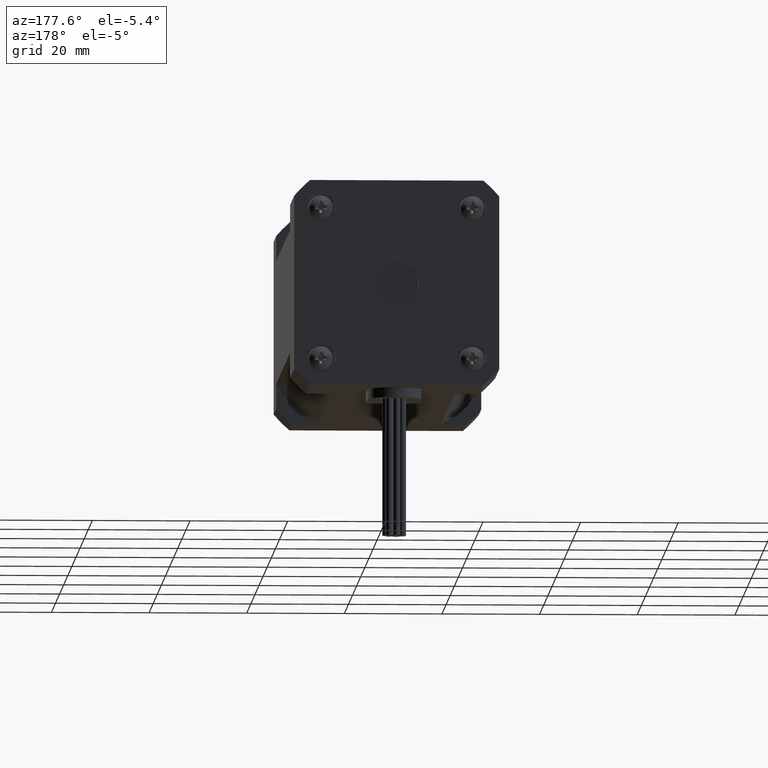
[diagram: clean part render]
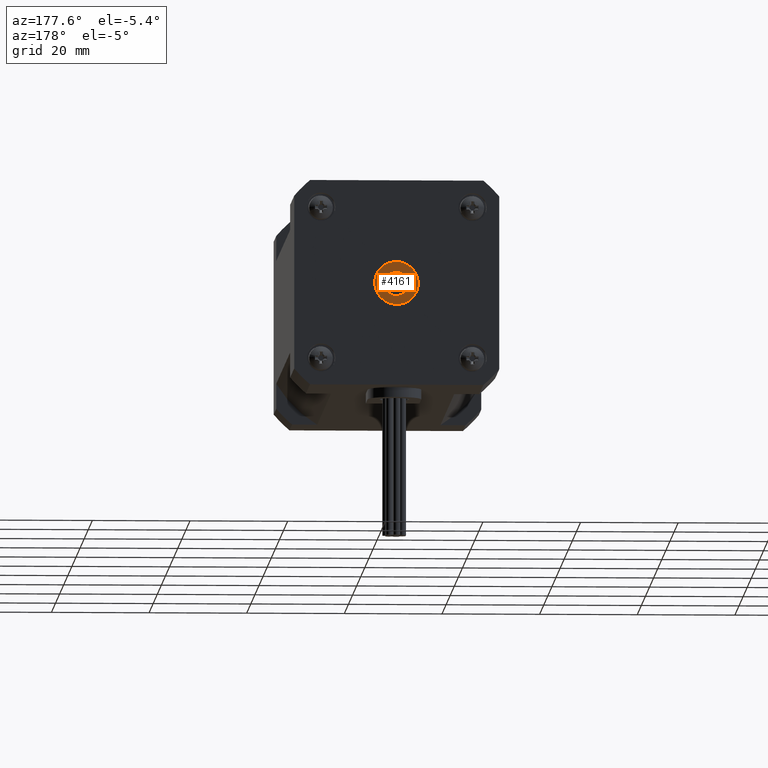
[diagram: same view with one face highlighted and labeled with its STEP entity id]
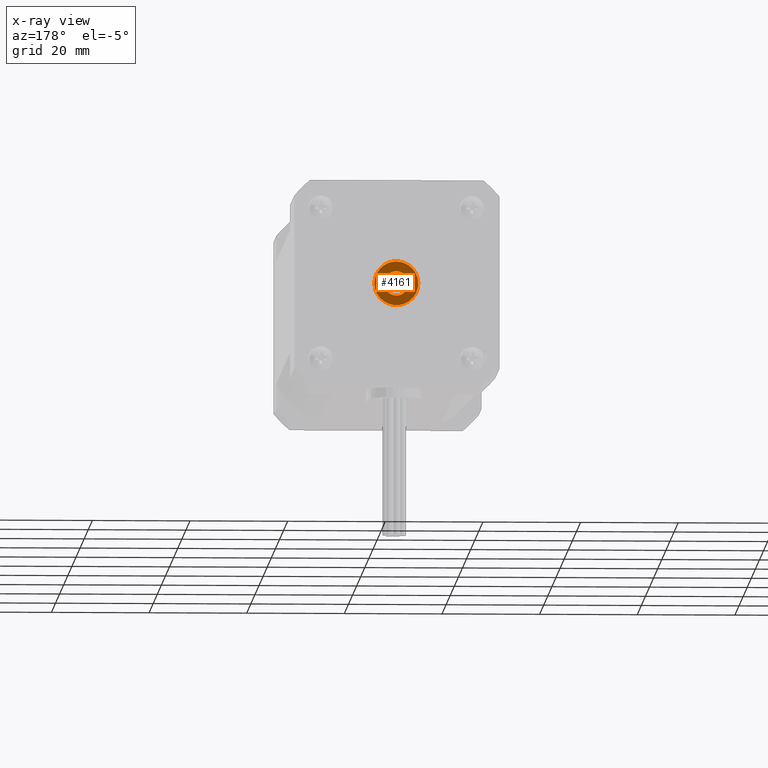
[diagram: x-ray of the same camera — body ghosted, the highlighted face saturated]
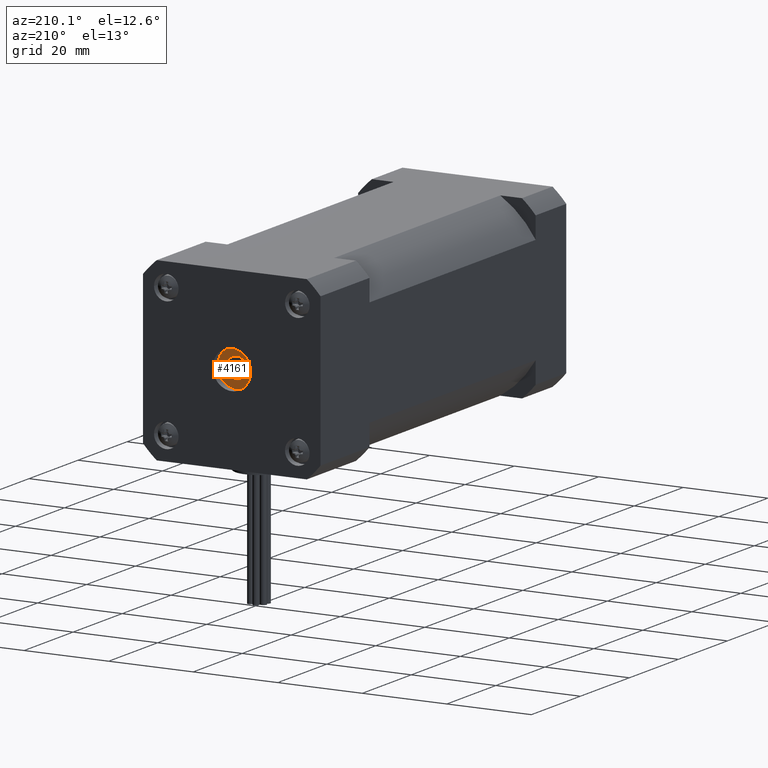
[diagram: same view with one face highlighted and labeled with its STEP entity id]
A machine part, auxiliary view. The second image highlights one B-rep face of the part: STEP entity #4161.
The next image is the same camera in x-ray: the body ghosted, the highlighted face saturated — about 0% of this face is hidden behind the body in this view.
A second angle (auxiliary view) of the same face is appended — the face is thin or edge-on in the first view.
In plain terms, the highlighted planar face has unit normal (0, 1, -0).
Its self-contained STEP definition (entity closure, byte-faithful):
#215=PLANE('',#4474);
#793=FACE_BOUND('',#1177,.T.);
#895=FACE_OUTER_BOUND('',#1176,.T.);
#1176=EDGE_LOOP('',(#2786));
#1177=EDGE_LOOP('',(#2787));
#1502=CIRCLE('',#4472,0.45);
#1504=CIRCLE('',#4475,0.25);
#1760=VERTEX_POINT('',#6334);
#1762=VERTEX_POINT('',#6339);
#2175=EDGE_CURVE('',#1760,#1760,#1502,.T.);
#2177=EDGE_CURVE('',#1762,#1762,#1504,.T.);
#2786=ORIENTED_EDGE('',*,*,#2175,.F.);
#2787=ORIENTED_EDGE('',*,*,#2177,.F.);
#4161=ADVANCED_FACE('',(#895,#793),#215,.T.);
#4472=AXIS2_PLACEMENT_3D('',#6335,#5090,#5091);
#4474=AXIS2_PLACEMENT_3D('',#6338,#5094,#5095);
#4475=AXIS2_PLACEMENT_3D('',#6340,#5096,#5097);
#5090=DIRECTION('center_axis',(-1.45477499778469E-16,-1.,1.24501532695106E-16));
#5091=DIRECTION('ref_axis',(-1.,1.45477499778469E-16,1.66533453693774E-16));
#5094=DIRECTION('center_axis',(1.45477499778469E-16,1.,-1.24501532695106E-16));
#5095=DIRECTION('ref_axis',(1.66533453693773E-16,0.,1.));
#5096=DIRECTION('center_axis',(1.45477499778469E-16,1.,-1.24501532695106E-16));
#5097=DIRECTION('ref_axis',(-1.,1.45477499778469E-16,1.66533453693774E-16));
#6334=CARTESIAN_POINT('',(0.0347400467010238,7.49264350961966,1.44780279227958));
#6335=CARTESIAN_POINT('Origin',(-0.415259953298976,7.49264350961966,1.44780279227958));
#6338=CARTESIAN_POINT('Origin',(-0.415259953298976,7.49264350961966,1.44780279227958));
#6339=CARTESIAN_POINT('',(-0.165259953298976,7.49264350961966,1.44780279227958));
#6340=CARTESIAN_POINT('Origin',(-0.415259953298976,7.49264350961966,1.44780279227958));